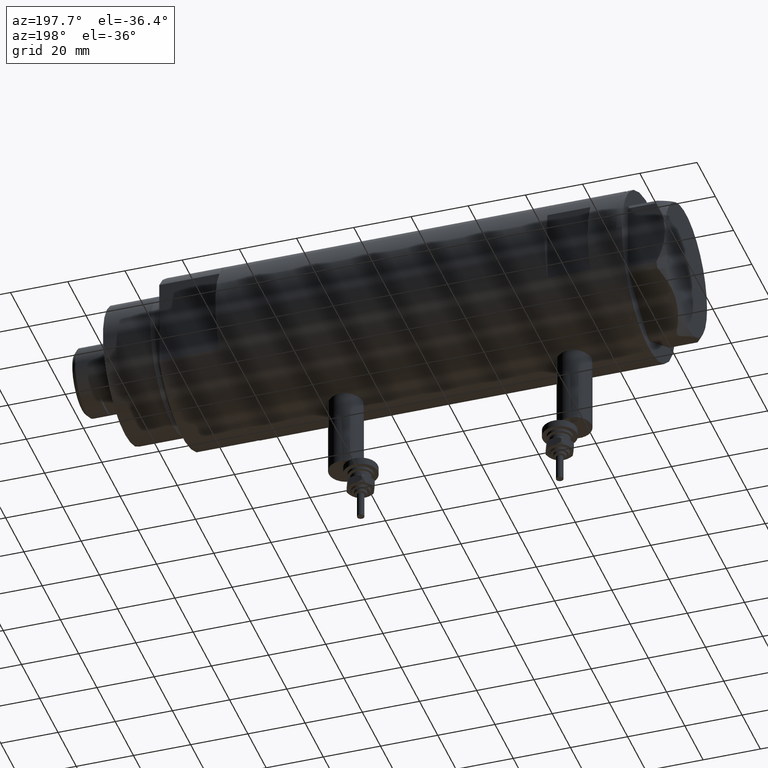
[diagram: clean part render]
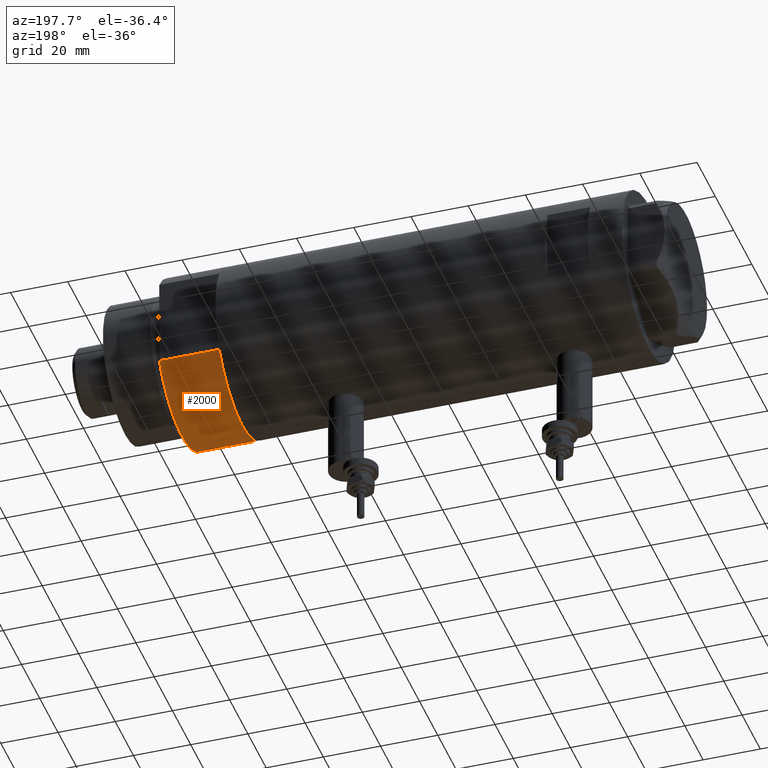
[diagram: same view with one face highlighted and labeled with its STEP entity id]
A machine part, auxiliary view. The second image highlights one B-rep face of the part: STEP entity #2000.
In plain terms, the highlighted cylindrical surface (partial cylindrical patch) has radius 29.5 mm, axis along (-1, -0, 0).
Its self-contained STEP definition (entity closure, byte-faithful):
#224 = CARTESIAN_POINT ( 'NONE',  ( 0.000000000000000000, 0.000000000000000000, 21.00000000000000000 ) ) ;
#679 = CARTESIAN_POINT ( 'NONE',  ( 15.66045976336582690, 25.00000000000000000, 0.000000000000000000 ) ) ;
#1250 = AXIS2_PLACEMENT_3D ( 'NONE', #224, #3470, #4831 ) ;
#1296 = EDGE_LOOP ( 'NONE', ( #3874, #4727, #1628, #3395 ) ) ;
#1339 = AXIS2_PLACEMENT_3D ( 'NONE', #4095, #1401, #5910 ) ;
#1343 = CIRCLE ( 'NONE', #1250, 29.50000000000000355 ) ;
#1401 = DIRECTION ( 'NONE',  ( 0.000000000000000000, 0.000000000000000000, 1.000000000000000000 ) ) ;
#1503 = DIRECTION ( 'NONE',  ( -0.000000000000000000, -0.000000000000000000, -1.000000000000000000 ) ) ;
#1532 = FACE_OUTER_BOUND ( 'NONE', #1296, .T. ) ;
#1628 = ORIENTED_EDGE ( 'NONE', *, *, #4080, .T. ) ;
#2000 = ADVANCED_FACE ( 'NONE', ( #1532 ), #2477, .T. ) ;
#2290 = LINE ( 'NONE', #4487, #4796 ) ;
#2477 = CYLINDRICAL_SURFACE ( 'NONE', #3343, 29.50000000000000355 ) ;
#2577 = VECTOR ( 'NONE', #4730, 1000.000000000000000 ) ;
#3003 = VERTEX_POINT ( 'NONE', #4757 ) ;
#3343 = AXIS2_PLACEMENT_3D ( 'NONE', #5238, #1503, #5143 ) ;
#3395 = ORIENTED_EDGE ( 'NONE', *, *, #4605, .T. ) ;
#3470 = DIRECTION ( 'NONE',  ( 0.000000000000000000, 0.000000000000000000, 1.000000000000000000 ) ) ;
#3874 = ORIENTED_EDGE ( 'NONE', *, *, #4290, .F. ) ;
#4053 = CARTESIAN_POINT ( 'NONE',  ( 15.66045976336583045, -25.00000000000000000, 21.00000000000000355 ) ) ;
#4080 = EDGE_CURVE ( 'NONE', #5405, #5001, #4318, .T. ) ;
#4095 = CARTESIAN_POINT ( 'NONE',  ( 0.000000000000000000, 0.000000000000000000, 0.000000000000000000 ) ) ;
#4245 = LINE ( 'NONE', #5242, #2577 ) ;
#4290 = EDGE_CURVE ( 'NONE', #4631, #3003, #1343, .T. ) ;
#4318 = CIRCLE ( 'NONE', #1339, 29.50000000000000355 ) ;
#4487 = CARTESIAN_POINT ( 'NONE',  ( 15.66045976336583401, -25.00000000000000000, 0.000000000000000000 ) ) ;
#4593 = DIRECTION ( 'NONE',  ( -0.000000000000000000, -0.000000000000000000, 1.000000000000000000 ) ) ;
#4605 = EDGE_CURVE ( 'NONE', #5001, #3003, #4245, .T. ) ;
#4631 = VERTEX_POINT ( 'NONE', #4053 ) ;
#4727 = ORIENTED_EDGE ( 'NONE', *, *, #5298, .F. ) ;
#4730 = DIRECTION ( 'NONE',  ( -0.000000000000000000, -0.000000000000000000, 1.000000000000000000 ) ) ;
#4757 = CARTESIAN_POINT ( 'NONE',  ( 15.66045976336583045, 24.99999999999999645, 20.99999999999999645 ) ) ;
#4796 = VECTOR ( 'NONE', #4593, 1000.000000000000000 ) ;
#4831 = DIRECTION ( 'NONE',  ( 1.000000000000000000, 0.000000000000000000, 0.000000000000000000 ) ) ;
#5001 = VERTEX_POINT ( 'NONE', #679 ) ;
#5143 = DIRECTION ( 'NONE',  ( -1.000000000000000000, 0.000000000000000000, 0.000000000000000000 ) ) ;
#5238 = CARTESIAN_POINT ( 'NONE',  ( 0.000000000000000000, 0.000000000000000000, 21.00000000000000000 ) ) ;
#5242 = CARTESIAN_POINT ( 'NONE',  ( 15.66045976336583401, 25.00000000000000000, 0.000000000000000000 ) ) ;
#5298 = EDGE_CURVE ( 'NONE', #5405, #4631, #2290, .T. ) ;
#5405 = VERTEX_POINT ( 'NONE', #5880 ) ;
#5880 = CARTESIAN_POINT ( 'NONE',  ( 15.66045976336583401, -25.00000000000000000, 0.000000000000000000 ) ) ;
#5910 = DIRECTION ( 'NONE',  ( 1.000000000000000000, 0.000000000000000000, 0.000000000000000000 ) ) ;